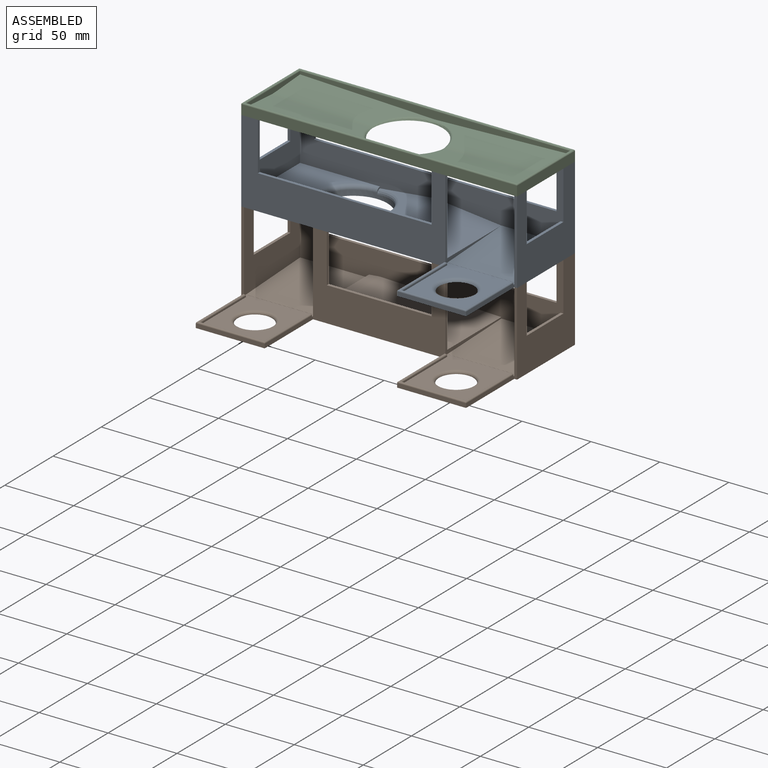
[diagram: assembled view]
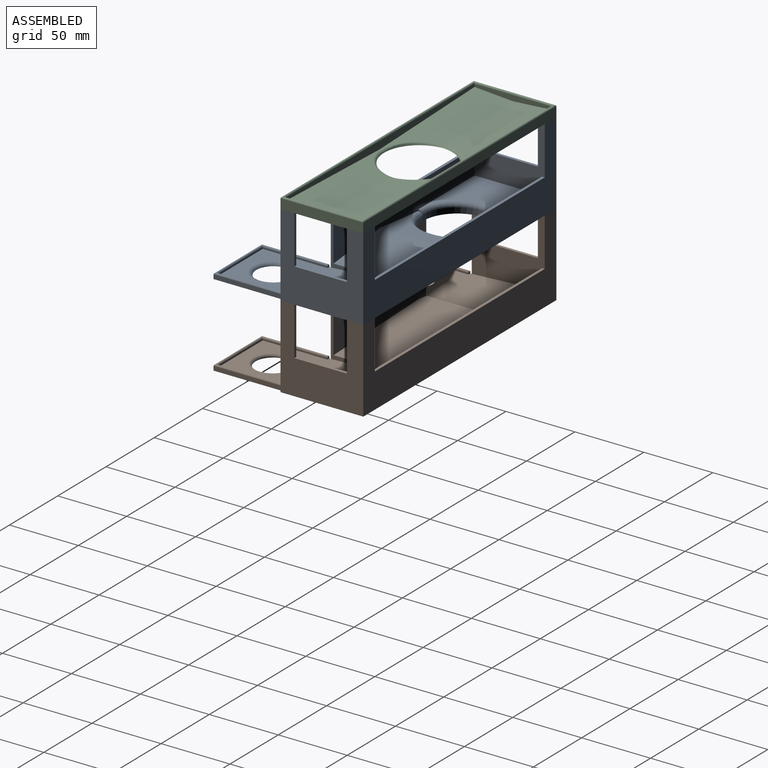
[diagram: assembled view, second angle]
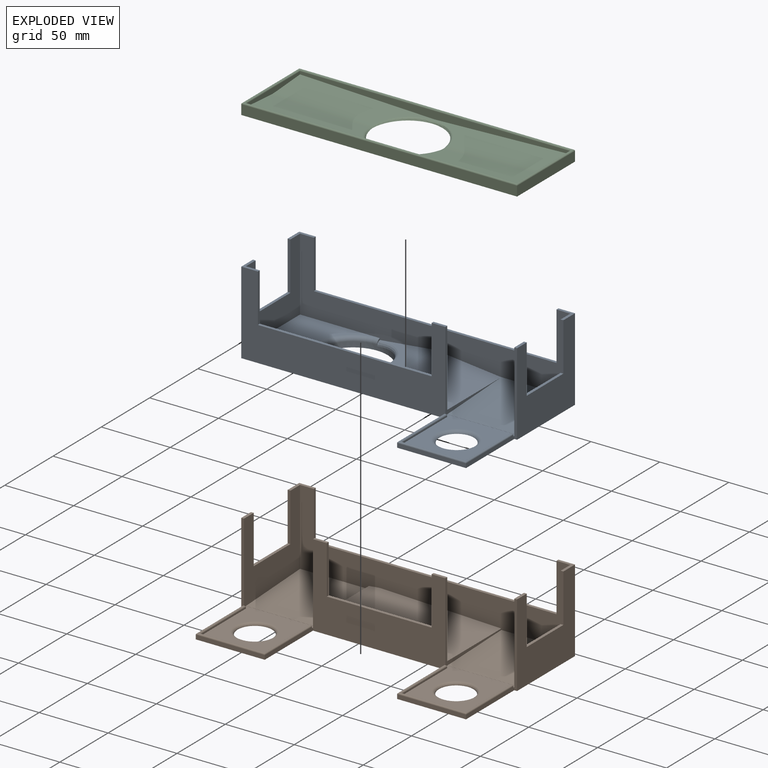
[diagram: exploded view]
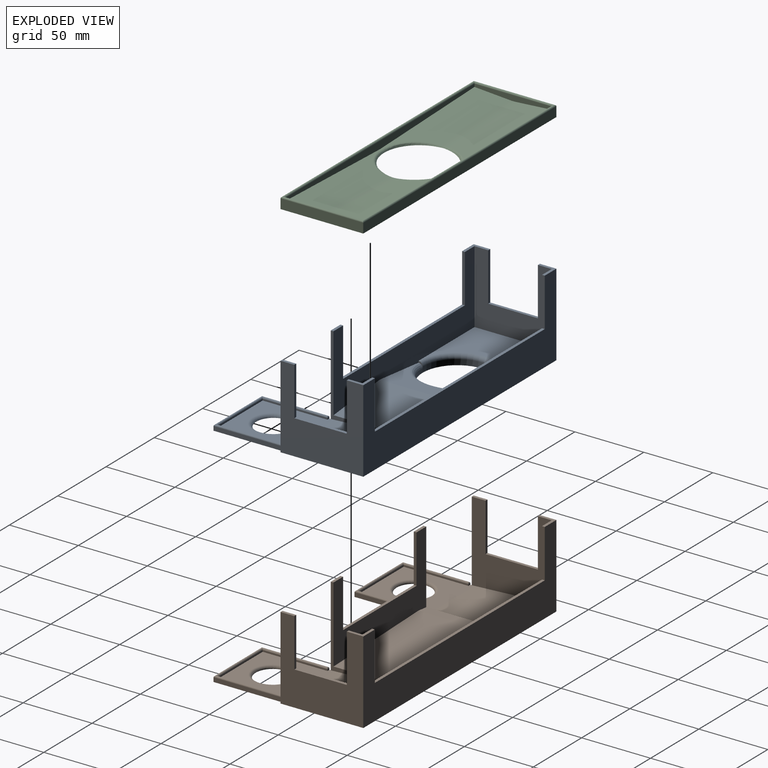
[diagram: exploded view, second angle]
ASSEMBLY  parts=3 mates=2
PART A: 55 faces, bbox 200x112.6x61 mm
  f0: plane 38x2mm, normal (0,0,1), area 76mm2, adj f5,f11,f50,f53
  f1: plane 126x2mm, normal (0,0,1), area 252mm2, adj f9,f14,f42,f48
  f2: plane 36x2mm, normal (0,0,1), area 72mm2, adj f13,f15,f43,f45
  f3: plane 176x2mm, normal (0,0,1), area 352mm2, adj f10,f12,f46,f52
  f4: plane 50x50mm, normal (0,0,1), area 1573.8mm2, adj f5,f8,f27,f28,f29,f31,f32,f33
  f5: plane 58x58mm, normal (-1,0,0), area 1948.2mm2, adj f0,f4,f6,f10,f26,f27,f50,f51
  f6: plane 60x2mm, normal (0,-1,0), area 120mm2, adj f5,f7,f11,f28,f51
  f7: plane 200x110mm, normal (0,0,-1), area 12045.6mm2, adj f6,f11,f12,f13,f14,f16,f28,f29
  f8: plane 58x57.14mm, normal (1,0,0), area 195.7mm2, adj f4,f9,f14,f23,f26,f27,f49
  f9: plane 146x55.05mm, normal (0,1,0), area 3269.2mm2, adj f1,f8,f15,f17,f18,f20,f23,f24
  f10: plane 196x55.05mm, normal (0,-1,0), area 4269.2mm2, adj f3,f5,f15,f17,f19,f20,f23,f24
  f11: plane 60x60mm, normal (1,0,0), area 2270mm2, adj f0,f6,f7,f12,f50,f51,f53,f54
  f12: plane 200x60mm, normal (0,1,0), area 5840mm2, adj f3,f7,f11,f13,f46,f47,f52,f54
  f13: plane 60x60mm, normal (-1,0,0), area 2340mm2, adj f2,f7,f12,f14,f43,f44,f45,f47
  f14: plane 148x60mm, normal (0,-1,0), area 4470mm2, adj f1,f7,f8,f13,f29,f42,f44,f48
  f15: plane 56x53mm, normal (1,0,0), area 1708mm2, adj f2,f9,f10,f20,f43,f44,f45,f47
  f16: cylinder r=25mm len=50mm, axis (0,0,-1), area 679.6mm2, adj f7,f18,f19,f21,f22
  f17: plane 56x38.43mm, normal (-0.1,0,0.99), area 943.4mm2, adj f9,f10,f18,f19,f21,f24
  f18: plane 4.22x3mm, normal (1,0,0), area 3.6mm2, adj f9,f16,f17,f21,f22
  f19: plane 4.22x3mm, normal (1,0,0), area 3.6mm2, adj f10,f16,f17,f21,f22
  f20: plane 58x56mm, normal (0,0,1), area 2016.5mm2, adj f9,f10,f15,f22
  f21: bspline ~56x27.99mm, area 369.8mm2, adj f16,f17,f18,f19
  f22: torus R=28mm, axis (0,0,1), area 386.2mm2, adj f16,f18,f19,f20
  f23: plane 56x46.43mm, normal (0.1,0,0.99), area 2614.5mm2, adj f8,f9,f10,f24,f25
  f24: cylinder r=15mm len=56mm, axis (0,-1,0), area 175.9mm2, adj f9,f10,f17,f23
  f25: plane 0.86x0.05mm, normal (-1,0,0), area 0mm2, adj f10,f23,f26
  f26: plane 56x50mm, normal (0,-0.05,1), area 2803.8mm2, adj f5,f8,f10,f25,f27
  f27: plane 50x0.07mm, normal (0,-1,0), area 3.3mm2, adj f4,f5,f8,f26
  f28: plane 50x3mm, normal (1,0,0), area 149mm2, adj f4,f6,f7,f30,f31,f37
  f29: plane 50x3mm, normal (-1,0,0), area 149mm2, adj f4,f7,f14,f30,f35,f39
  f30: plane 50x3mm, normal (0,-1,0), area 150mm2, adj f7,f28,f29,f38
  f31: plane 2x1mm, normal (0,1,0), area 2mm2, adj f4,f28,f32,f36
  f32: plane 47x1mm, normal (-1,0,0), area 47mm2, adj f4,f31,f33,f37
  f33: plane 46x1mm, normal (0,1,0), area 46mm2, adj f4,f32,f34,f38
  f34: plane 47x1mm, normal (1,0,0), area 47mm2, adj f4,f33,f35,f39
  f35: plane 2x1mm, normal (0,1,0), area 2mm2, adj f4,f29,f34,f40
  f36: cylinder r=1mm len=2mm, axis (1,0,0), area 1.6mm2, adj f31,f37
  f37: cylinder r=1mm len=49mm, axis (0,-1,0), area 149.2mm2, adj f28,f32,f36,f38
  f38: cylinder r=1mm len=50mm, axis (-1,0,0), area 150.8mm2, adj f30,f33,f37,f39
  f39: cylinder r=1mm len=49mm, axis (0,1,0), area 149.2mm2, adj f29,f34,f38,f40
  f40: cylinder r=1mm len=2mm, axis (1,0,0), area 1.6mm2, adj f35,f39
  f41: torus R=15.33mm, axis (0,0,1), area 318mm2, adj f4,f7
  f42: plane 35x2mm, normal (1,0,0), area 70mm2, adj f1,f9,f14,f44
  f43: plane 35x2mm, normal (0,1,0), area 70mm2, adj f2,f13,f15,f44
  f44: plane 12x12mm, normal (0,0,1), area 44mm2, adj f9,f13,f14,f15,f42,f43
  f45: plane 35x2mm, normal (0,-1,0), area 70mm2, adj f2,f13,f15,f47
  f46: plane 35x2mm, normal (1,0,0), area 70mm2, adj f3,f10,f12,f47
  f47: plane 12x12mm, normal (0,0,1), area 44mm2, adj f10,f12,f13,f15,f45,f46
  f48: plane 35x2mm, normal (-1,0,0), area 70mm2, adj f1,f9,f14,f49
  f49: plane 10x2mm, normal (0,0,1), area 20mm2, adj f8,f9,f14,f48
  f50: plane 35x2mm, normal (0,1,0), area 70mm2, adj f0,f5,f11,f51
  f51: plane 10x2mm, normal (0,0,1), area 20mm2, adj f5,f6,f11,f50
  f52: plane 35x2mm, normal (-1,0,0), area 70mm2, adj f3,f10,f12,f54
  f53: plane 35x2mm, normal (0,-1,0), area 70mm2, adj f0,f5,f11,f54
  f54: plane 12x12mm, normal (0,0,1), area 44mm2, adj f5,f10,f11,f12,f52,f53
PART B: 68 faces, bbox 200x110x61.4 mm
  f0: plane 76x2mm, normal (0,0,1), area 152mm2, adj f9,f10,f64,f66
  f1: plane 38x2mm, normal (0,0,1), area 76mm2, adj f14,f17,f60,f62
  f2: plane 176x2mm, normal (0,0,1), area 352mm2, adj f8,f16,f57,f59
  f3: plane 38x2mm, normal (0,0,1), area 76mm2, adj f15,f19,f54,f56
  f4: plane 50x0.07mm, normal (0,-1,0), area 3.3mm2, adj f5,f7,f14,f27
  f5: plane 56x50mm, normal (0,-0.05,1), area 2803.8mm2, adj f4,f7,f8,f14
  f6: plane 200x110mm, normal (0,0,-1), area 16018.3mm2, adj f10,f11,f15,f16,f17,f18,f25,f26
  f7: plane 58x58mm, normal (-1,0,0), area 319.1mm2, adj f4,f5,f8,f9,f10,f20,f27,f67
  f8: plane 196x56mm, normal (0,-1,0), area 4520.6mm2, adj f2,f5,f7,f12,f13,f14,f19,f20
  f9: plane 96x55.07mm, normal (0,1,0), area 2470.6mm2, adj f0,f7,f12,f13,f20,f21,f64,f65
  f10: plane 96x60mm, normal (0,-1,0), area 3100mm2, adj f0,f6,f7,f12,f26,f28,f64,f65
  f11: plane 60x2mm, normal (0,-1,0), area 120mm2, adj f6,f15,f19,f25,f55
  f12: plane 58x58mm, normal (1,0,0), area 222.7mm2, adj f8,f9,f10,f13,f22,f23,f24,f65
  f13: plane 86.25x56mm, normal (0.03,0,1), area 4833.1mm2, adj f8,f9,f12,f21
  f14: plane 58x58mm, normal (1,0,0), area 1948.2mm2, adj f1,f4,f5,f8,f18,f27,f60,f61
  f15: plane 60x60mm, normal (1,0,0), area 2270mm2, adj f3,f6,f11,f16,f54,f55,f56,f58
  f16: plane 200x60mm, normal (0,1,0), area 5840mm2, adj f2,f6,f15,f17,f57,f58,f59,f61
  f17: plane 60x60mm, normal (-1,0,0), area 2270mm2, adj f1,f6,f16,f18,f60,f61,f62,f63
  f18: plane 60x2mm, normal (0,-1,0), area 120mm2, adj f6,f14,f17,f29,f63
  f19: plane 58x58mm, normal (-1,0,0), area 1976.8mm2, adj f3,f8,f11,f22,f23,f24,f54,f55
  f20: plane 56x6.26mm, normal (-0.1,0,0.99), area 352.6mm2, adj f7,f8,f9,f21
  f21: cylinder r=25mm len=56mm, axis (0,-1,0), area 195.5mm2, adj f8,f9,f13,f20
  f22: plane 50x0.04mm, normal (0,-1,0), area 2.2mm2, adj f12,f19,f23,f24
  f23: plane 56x50mm, normal (0,-0.03,1), area 2801.7mm2, adj f8,f12,f19,f22
  f24: plane 50x50mm, normal (0,0,1), area 1651.5mm2, adj f12,f19,f22,f25,f26,f36,f37,f38
  f25: plane 50x3mm, normal (1,0,0), area 149mm2, adj f6,f11,f24,f37,f41,f44
  f26: plane 50x3mm, normal (-1,0,0), area 149mm2, adj f6,f10,f24,f40,f41,f43
  f27: plane 50x50mm, normal (0,0,1), area 1651.5mm2, adj f4,f7,f14,f28,f29,f30,f31,f32
  f28: plane 50x3mm, normal (1,0,0), area 149mm2, adj f6,f10,f27,f31,f35,f49
  f29: plane 50x3mm, normal (-1,0,0), area 149mm2, adj f6,f18,f27,f34,f35,f48
  f30: plane 46x1mm, normal (0,1,0), area 46mm2, adj f27,f32,f33,f51
  f31: plane 2x1mm, normal (0,1,0), area 2mm2, adj f27,f28,f32,f50
  f32: plane 47x1mm, normal (-1,0,0), area 47mm2, adj f27,f30,f31,f49
  f33: plane 47x1mm, normal (1,0,0), area 47mm2, adj f27,f30,f34,f48
  f34: plane 2x1mm, normal (0,1,0), area 2mm2, adj f27,f29,f33,f47
  f35: plane 50x3mm, normal (0,-1,0), area 150mm2, adj f6,f28,f29,f51
  f36: plane 46x1mm, normal (0,1,0), area 46mm2, adj f24,f38,f39,f46
  f37: plane 2x1mm, normal (0,1,0), area 2mm2, adj f24,f25,f38,f45
  f38: plane 47x1mm, normal (-1,0,0), area 47mm2, adj f24,f36,f37,f44
  f39: plane 47x1mm, normal (1,0,0), area 47mm2, adj f24,f36,f40,f43
  f40: plane 2x1mm, normal (0,1,0), area 2mm2, adj f24,f26,f39,f42
  f41: plane 50x3mm, normal (0,-1,0), area 150mm2, adj f6,f25,f26,f46
  f42: cylinder r=1mm len=2mm, axis (1,0,0), area 2mm2, adj f40,f43
  f43: cylinder r=1mm len=49mm, axis (0,-1,0), area 149.7mm2, adj f26,f39,f42,f46
  f44: cylinder r=1mm len=49mm, axis (0,1,0), area 149.7mm2, adj f25,f38,f45,f46
  f45: cylinder r=1mm len=2mm, axis (1,0,0), area 2mm2, adj f37,f44
  f46: cylinder r=1mm len=50mm, axis (1,0,0), area 150.8mm2, adj f36,f41,f43,f44
  f47: cylinder r=1mm len=2mm, axis (1,0,0), area 2mm2, adj f34,f48
  f48: cylinder r=1mm len=49mm, axis (0,-1,0), area 149.7mm2, adj f29,f33,f47,f51
  f49: cylinder r=1mm len=49mm, axis (0,1,0), area 149.7mm2, adj f28,f32,f50,f51
  f50: cylinder r=1mm len=2mm, axis (1,0,0), area 2mm2, adj f31,f49
  f51: cylinder r=1mm len=50mm, axis (1,0,0), area 150.8mm2, adj f30,f35,f48,f49
  f52: torus R=14.5mm, axis (0,0,1), area 261.1mm2, adj f6,f24
  f53: torus R=14.5mm, axis (0,0,1), area 261.1mm2, adj f6,f27
  f54: plane 35x2mm, normal (0,1,0), area 70mm2, adj f3,f15,f19,f55
  f55: plane 10x2mm, normal (0,0,1), area 20mm2, adj f11,f15,f19,f54
  f56: plane 35x2mm, normal (0,-1,0), area 70mm2, adj f3,f15,f19,f58
  f57: plane 35x2mm, normal (-1,0,0), area 70mm2, adj f2,f8,f16,f58
  f58: plane 12x12mm, normal (0,0,1), area 44mm2, adj f8,f15,f16,f19,f56,f57
  f59: plane 35x2mm, normal (1,0,0), area 70mm2, adj f2,f8,f16,f61
  f60: plane 35x2mm, normal (0,-1,0), area 70mm2, adj f1,f14,f17,f61
  f61: plane 12x12mm, normal (0,0,1), area 44mm2, adj f8,f14,f16,f17,f59,f60
  f62: plane 35x2mm, normal (0,1,0), area 70mm2, adj f1,f14,f17,f63
  f63: plane 10x2mm, normal (0,0,1), area 20mm2, adj f14,f17,f18,f62
  f64: plane 35x2mm, normal (-1,0,0), area 70mm2, adj f0,f9,f10,f65
  f65: plane 10x2mm, normal (0,0,1), area 20mm2, adj f9,f10,f12,f64
  f66: plane 35x2mm, normal (1,0,0), area 70mm2, adj f0,f9,f10,f67
  f67: plane 10x2mm, normal (0,0,1), area 20mm2, adj f7,f9,f10,f66
PART C: 25 faces, bbox 201.1x61.1x10.5 mm
  f0: plane 196x5.43mm, normal (0,1,0), area 728.2mm2, adj f1,f4,f10,f14,f17
  f1: plane 56x3.87mm, normal (1,0,0), area 166.7mm2, adj f0,f5,f12,f16,f17,f18
  f2: plane 98x25.56mm, normal (-0.03,-0.07,1), area 2009.7mm2, adj f4,f5,f15,f16,f20
  f3: plane 201.13x61.13mm, normal (0,0,-1), area 10017.1mm2, adj f6,f7,f8,f9,f19,f20,f21,f22
  f4: plane 56.01x3.88mm, normal (-1,0,0), area 166.7mm2, adj f0,f2,f5,f11,f14,f15
  f5: plane 196x5.43mm, normal (0,-1,0), area 728.2mm2, adj f1,f2,f4,f13,f16
  f6: plane 200x7mm, normal (0,-1,0), area 1400mm2, adj f3,f7,f9,f10
  f7: plane 60x7mm, normal (1,0,0), area 420mm2, adj f3,f6,f8,f11
  f8: plane 200x7mm, normal (0,1,0), area 1400mm2, adj f3,f7,f9,f13
  f9: plane 60x7mm, normal (-1,0,0), area 420mm2, adj f3,f6,f8,f12
  f10: cylinder r=1mm len=200mm, axis (1,0,0), area 622mm2, adj f0,f6,f11,f12
  f11: cylinder r=1mm len=60mm, axis (0,1,0), area 182.2mm2, adj f4,f7,f10,f13
  f12: cylinder r=1mm len=60mm, axis (0,-1,0), area 182.2mm2, adj f1,f9,f10,f13
  f13: cylinder r=1mm len=200mm, axis (-1,0,0), area 622mm2, adj f5,f8,f11,f12
  f14: plane 98x25.56mm, normal (-0.03,0.07,1), area 2009.7mm2, adj f0,f4,f15,f17,f21
  f15: cylinder r=35mm len=71.2mm, axis (-1,0,-0.03), area 347.9mm2, adj f2,f4,f14,f19
  f16: plane 98x25.56mm, normal (0.03,-0.07,1), area 2003.4mm2, adj f1,f2,f5,f18,f22
  f17: plane 98x25.56mm, normal (0.03,0.07,1), area 2003.4mm2, adj f0,f1,f14,f18,f23
  f18: cone r=35mm half-angle=2deg, axis (1,0,0), area 360.6mm2, adj f1,f16,f17,f24
  f19: bspline ~8.67x2.3mm, area 8mm2, adj f3,f15,f20,f21
  f20: bspline ~26.86x24.51mm, area 79.5mm2, adj f2,f3,f19,f22
  f21: bspline ~26.86x24.51mm, area 79.5mm2, adj f3,f14,f19,f23
  f22: bspline ~26.84x24.35mm, area 79.4mm2, adj f3,f16,f20,f24
  f23: bspline ~26.84x24.35mm, area 79.4mm2, adj f3,f17,f21,f24
  f24: bspline ~8.37x2.31mm, area 8.7mm2, adj f3,f18,f22,f23
PLACE A t=(20.06,60.73,-58.42)mm
PLACE B t=(20.06,60.73,-118.42)mm
PLACE C t=(20.06,60.73,1.58)mm
MATE fastened A.f44 <-> C.f3  axis (0,0,1) through (-79.94,30.73,1.58)mm
MATE fastened A.f7 <-> B.f63  axis (0,0,-1) through (-79.94,30.73,-58.42)mm
